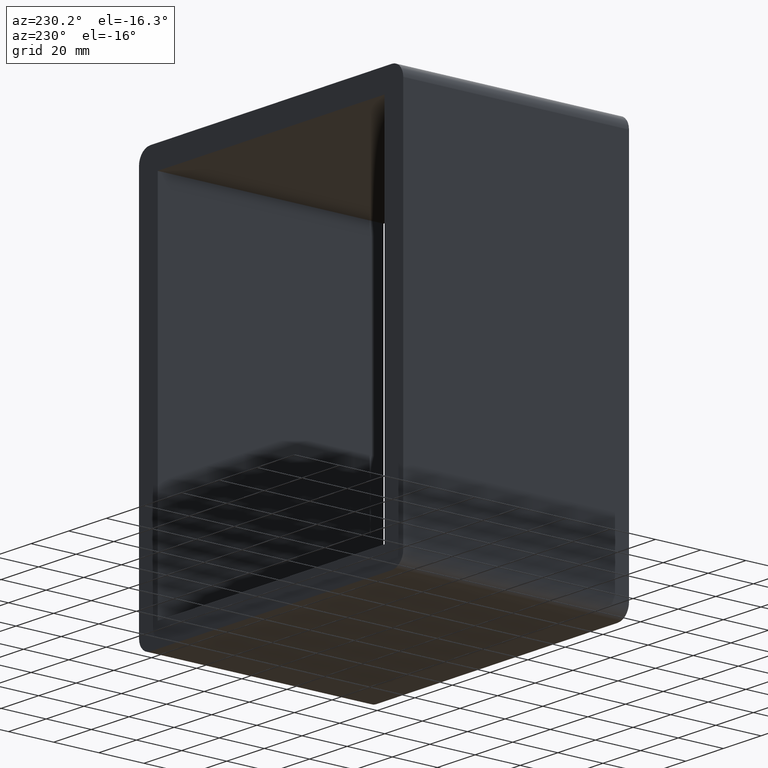
[diagram: clean part render]
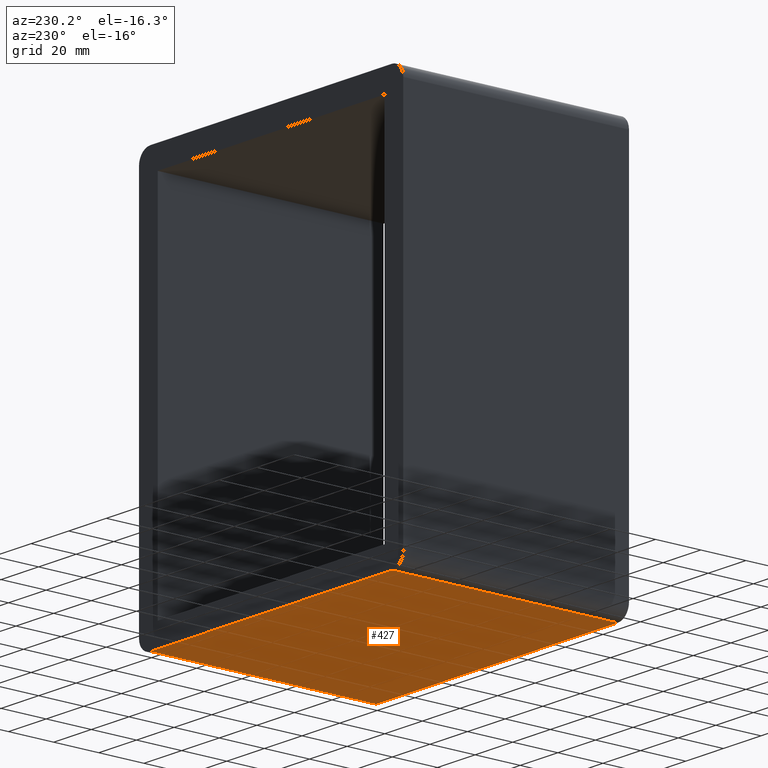
[diagram: same view with one face highlighted and labeled with its STEP entity id]
A machine part, auxiliary view. The second image highlights one B-rep face of the part: STEP entity #427.
In plain terms, the highlighted planar face has unit normal (0, 0, -1).
Its self-contained STEP definition (entity closure, byte-faithful):
#241=CARTESIAN_POINT('',(-64.25,-3.0,-89.750000000000014));
#242=VERTEX_POINT('',#241);
#250=CARTESIAN_POINT('',(64.25,-3.0,-89.750000000000014));
#251=VERTEX_POINT('',#250);
#252=CARTESIAN_POINT('',(-64.25,-3.0,-89.750000000000014));
#253=DIRECTION('',(1.0,0.0,0.0));
#254=VECTOR('',#253,128.5);
#255=LINE('',#252,#254);
#256=EDGE_CURVE('',#242,#251,#255,.T.);
#385=CARTESIAN_POINT('',(-64.25,97.0,-89.750000000000014));
#386=VERTEX_POINT('',#385);
#394=CARTESIAN_POINT('',(-64.25,-3.0,-89.750000000000014));
#395=DIRECTION('',(0.0,1.0,0.0));
#396=VECTOR('',#395,100.0);
#397=LINE('',#394,#396);
#398=EDGE_CURVE('',#242,#386,#397,.T.);
#404=CARTESIAN_POINT('',(64.25,0.0,-89.750000000000014));
#405=DIRECTION('',(0.0,0.0,-1.0));
#406=DIRECTION('',(-1.0,0.0,0.0));
#407=AXIS2_PLACEMENT_3D('',#404,#405,#406);
#408=PLANE('',#407);
#409=ORIENTED_EDGE('',*,*,#398,.T.);
#410=CARTESIAN_POINT('',(64.25,97.0,-89.750000000000014));
#411=VERTEX_POINT('',#410);
#412=CARTESIAN_POINT('',(64.25,97.0,-89.750000000000014));
#413=DIRECTION('',(-1.0,0.0,0.0));
#414=VECTOR('',#413,128.5);
#415=LINE('',#412,#414);
#416=EDGE_CURVE('',#411,#386,#415,.T.);
#417=ORIENTED_EDGE('',*,*,#416,.F.);
#418=CARTESIAN_POINT('',(64.25,-3.0,-89.750000000000014));
#419=DIRECTION('',(0.0,1.0,0.0));
#420=VECTOR('',#419,100.0);
#421=LINE('',#418,#420);
#422=EDGE_CURVE('',#251,#411,#421,.T.);
#423=ORIENTED_EDGE('',*,*,#422,.F.);
#424=ORIENTED_EDGE('',*,*,#256,.F.);
#425=EDGE_LOOP('',(#409,#417,#423,#424));
#426=FACE_OUTER_BOUND('',#425,.T.);
#427=ADVANCED_FACE('',(#426),#408,.T.);